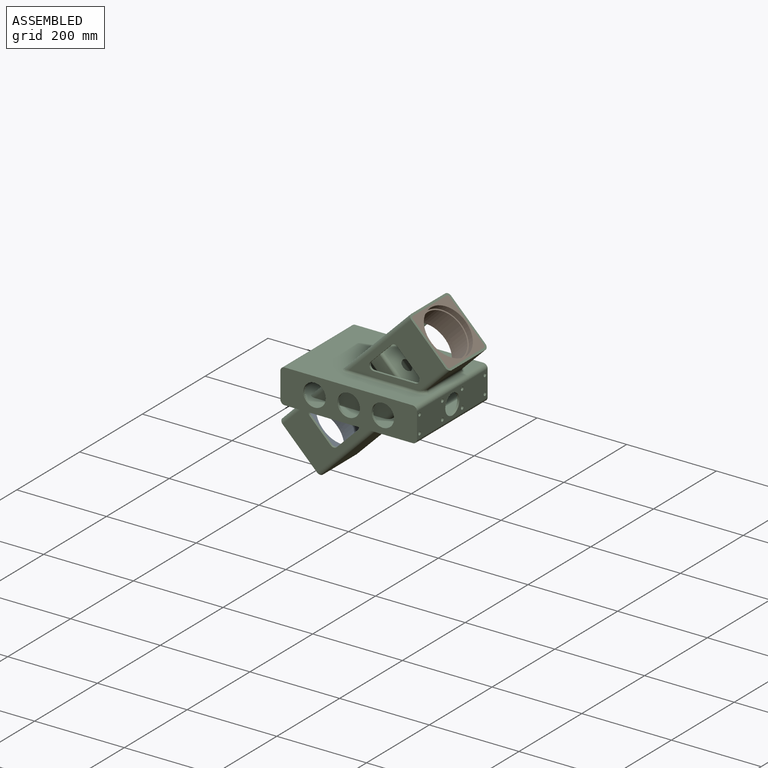
[diagram: assembled view]
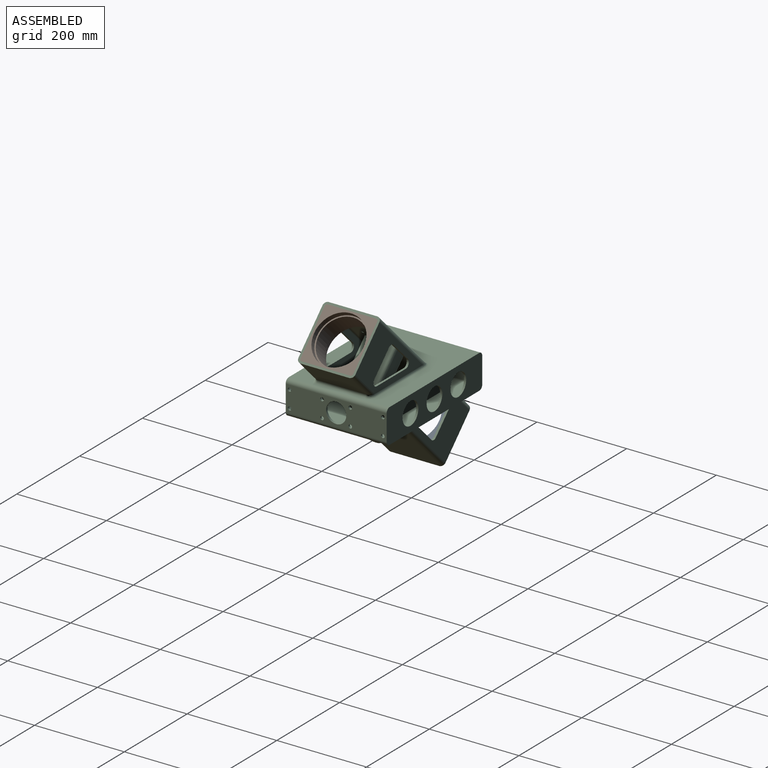
[diagram: assembled view, second angle]
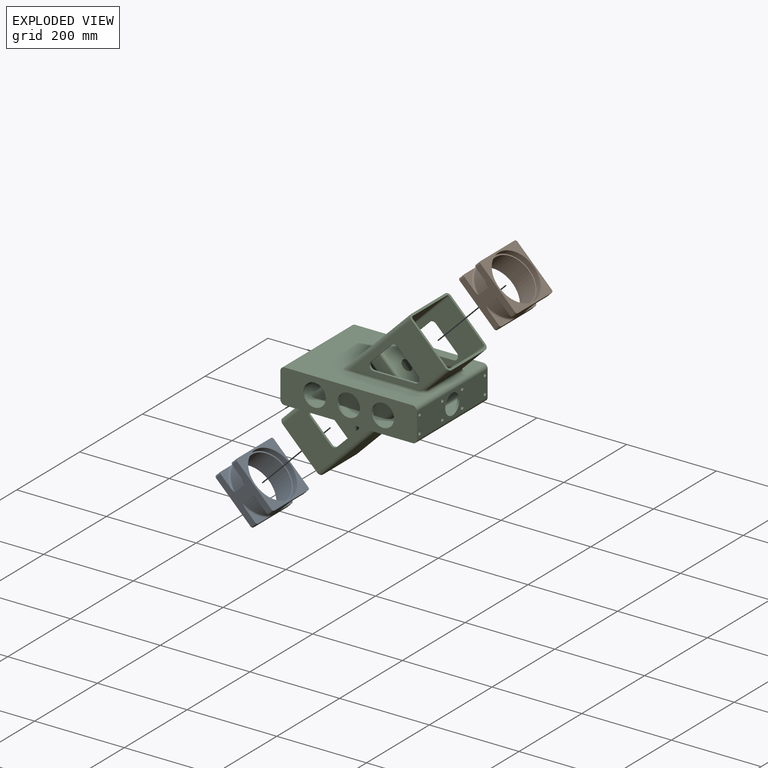
[diagram: exploded view]
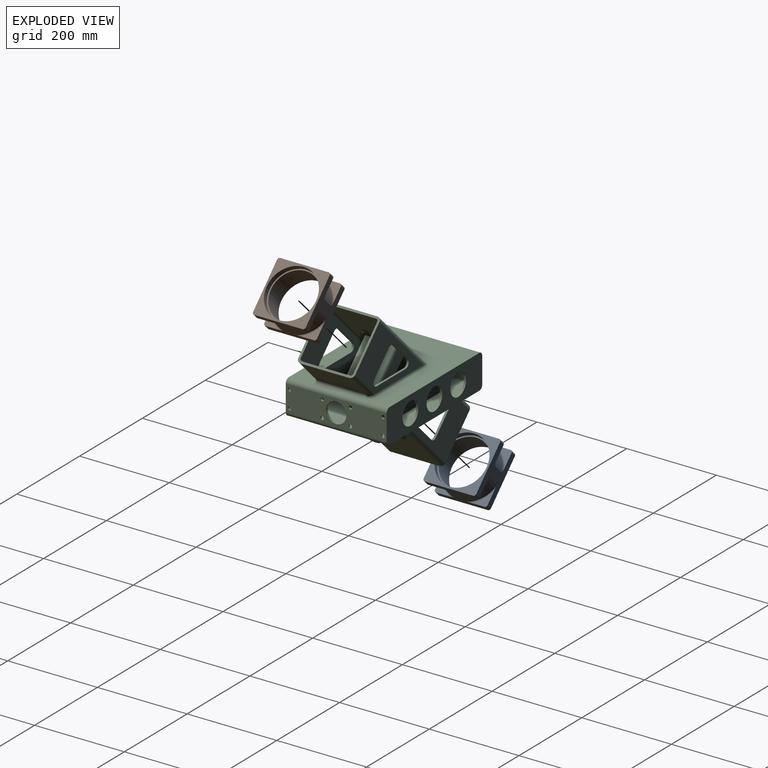
[diagram: exploded view, second angle]
ASSEMBLY  parts=3 mates=2
PART A: 39 faces, bbox 138.7x138.7x66 mm
  f0: plane 117.48x117.48mm, normal (0,0,-1), area 4277.6mm2, adj f2,f7,f8,f9,f10,f11,f12,f13
  f1: plane 117.48x117.48mm, normal (0,0,1), area 4277.6mm2, adj f6,f7,f9,f11,f13,f15,f16,f17
  f2: cylinder r=55mm len=110mm, axis (0,0,1), area 4492.5mm2, adj f0,f3
  f3: plane 110x110mm, normal (0,0,-1), area 959.4mm2, adj f2,f4
  f4: cylinder r=52.15mm len=104.3mm, axis (0,0,-1), area 13106.7mm2, adj f3,f5
  f5: plane 110x110mm, normal (0,0,1), area 959.4mm2, adj f4,f6
  f6: cylinder r=55mm len=110mm, axis (0,0,1), area 4492.5mm2, adj f1,f5
  f7: plane 107.95x66mm, normal (0,-1,0), area 4155.3mm2, adj f0,f1,f8,f14,f15,f18,f19,f20
  f8: cylinder r=4.76mm len=15mm, axis (0,0,1), area 112.2mm2, adj f0,f7,f9,f38
  f9: plane 107.95x66mm, normal (-1,0,0), area 4155.3mm2, adj f0,f1,f8,f10,f15,f16,f29,f30
  f10: cylinder r=4.76mm len=15mm, axis (0,0,1), area 112.2mm2, adj f0,f9,f11,f33
  f11: plane 107.95x66mm, normal (0,1,0), area 4155.3mm2, adj f0,f1,f10,f12,f16,f17,f24,f25
  f12: cylinder r=4.76mm len=15mm, axis (0,0,1), area 112.2mm2, adj f0,f11,f13,f28
  f13: plane 107.95x66mm, normal (1,0,0), area 4155.3mm2, adj f0,f1,f12,f14,f17,f18,f19,f20
  f14: cylinder r=4.76mm len=15mm, axis (0,0,1), area 112.2mm2, adj f0,f7,f13,f23
  f15: cylinder r=4.76mm len=15mm, axis (0,0,1), area 112.2mm2, adj f1,f7,f9,f34
  f16: cylinder r=4.76mm len=15mm, axis (0,0,1), area 112.2mm2, adj f1,f9,f11,f29
  f17: cylinder r=4.76mm len=15mm, axis (0,0,1), area 112.2mm2, adj f1,f11,f13,f24
  f18: cylinder r=4.76mm len=15mm, axis (0,0,1), area 112.2mm2, adj f1,f7,f13,f19
  f19: plane 35.48x35.48mm, normal (0,0,-1), area 449.3mm2, adj f7,f13,f18,f20
  f20: torus R=63.17mm, axis (0,0,-1), area 310.2mm2, adj f7,f13,f19,f21
  f21: cylinder r=60mm len=46.49mm, axis (0,0,-1), area 2063.3mm2, adj f7,f13,f20,f22
  f22: torus R=63.17mm, axis (0,0,1), area 310.2mm2, adj f7,f13,f21,f23
  f23: plane 35.48x35.48mm, normal (0,0,1), area 449.3mm2, adj f7,f13,f14,f22
  f24: plane 35.48x35.48mm, normal (0,0,-1), area 449.3mm2, adj f11,f13,f17,f25
  f25: torus R=63.17mm, axis (0,0,-1), area 310.2mm2, adj f11,f13,f24,f26
  f26: cylinder r=60mm len=46.49mm, axis (0,0,-1), area 2063.3mm2, adj f11,f13,f25,f27
  f27: torus R=63.17mm, axis (0,0,1), area 310.2mm2, adj f11,f13,f26,f28
  f28: plane 35.48x35.48mm, normal (0,0,1), area 449.3mm2, adj f11,f12,f13,f27
  f29: plane 35.48x35.48mm, normal (0,0,-1), area 449.3mm2, adj f9,f11,f16,f30
  f30: torus R=63.17mm, axis (0,0,-1), area 310.2mm2, adj f9,f11,f29,f31
  f31: cylinder r=60mm len=46.49mm, axis (0,0,-1), area 2063.3mm2, adj f9,f11,f30,f32
  f32: torus R=63.17mm, axis (0,0,1), area 310.2mm2, adj f9,f11,f31,f33
  f33: plane 35.48x35.48mm, normal (0,0,1), area 449.3mm2, adj f9,f10,f11,f32
  f34: plane 35.48x35.48mm, normal (0,0,-1), area 449.3mm2, adj f7,f9,f15,f35
  f35: torus R=63.17mm, axis (0,0,-1), area 310.2mm2, adj f7,f9,f34,f36
  f36: cylinder r=60mm len=46.49mm, axis (0,0,-1), area 2063.3mm2, adj f7,f9,f35,f37
  f37: torus R=63.17mm, axis (0,0,1), area 310.2mm2, adj f7,f9,f36,f38
  f38: plane 35.48x35.48mm, normal (0,0,1), area 449.3mm2, adj f7,f8,f9,f37
PART B: same geometry as A
PART C: 161 faces, bbox 376.9x225x376.9 mm
  f0: plane 295.28x66.68mm, normal (0,-1,0), area 12293.6mm2, adj f21,f22,f23,f24,f25,f26,f27,f28
  f1: plane 295.28x66.68mm, normal (0,1,0), area 12293.6mm2, adj f21,f22,f23,f24,f25,f26,f27,f28
  f2: cylinder r=4mm len=8mm, axis (-1,0,0), area 119.7mm2, adj f25,f55
  f3: cylinder r=4mm len=8mm, axis (-1,0,0), area 119.7mm2, adj f25,f55
  f4: cylinder r=4mm len=8mm, axis (-1,0,0), area 119.7mm2, adj f25,f55
  f5: cylinder r=4mm len=8mm, axis (-1,0,0), area 119.7mm2, adj f25,f55
  f6: cylinder r=4mm len=8mm, axis (1,0,0), area 119.7mm2, adj f22,f52
  f7: cylinder r=4mm len=8mm, axis (1,0,0), area 119.7mm2, adj f22,f52
  f8: cylinder r=4mm len=8mm, axis (1,0,0), area 119.7mm2, adj f22,f52
  f9: cylinder r=4mm len=8mm, axis (1,0,0), area 119.7mm2, adj f22,f52
  f10: plane 107.95x66.68mm, normal (0.71,0,-0.71), area 7969.8mm2, adj f18,f19,f27,f28,f116,f117,f118,f119
  f11: plane 287.09x287.09mm, normal (0.71,0,-0.71), area 40815.7mm2, adj f40,f43,f63,f64,f108,f109,f110,f111
  f12: plane 287.09x287.09mm, normal (-0.71,0,0.71), area 40959.1mm2, adj f41,f42,f63,f64,f108,f109,f110,f111
  f13: plane 148.86x148.86mm, normal (-0.71,0,0.71), area 20372.8mm2, adj f60,f61,f64,f69,f116,f117,f118,f119
  f14: cylinder r=9.53mm len=80.15mm, axis (0.71,0,0.71), area 1410.8mm2, adj f15,f20,f27,f28
  f15: plane 107.95x66.68mm, normal (-0.71,0,0.71), area 10178.9mm2, adj f14,f16,f27,f28
  f16: cylinder r=9.53mm len=80.15mm, axis (0.71,0,0.71), area 1410.8mm2, adj f15,f17,f27,f28
  f17: plane 219.34x66.68mm, normal (0,1,0), area 10178.9mm2, adj f16,f18,f27,f28
  f18: cylinder r=9.53mm len=80.15mm, axis (0.71,0,0.71), area 1410.8mm2, adj f10,f17,f27,f28
  f19: cylinder r=9.53mm len=80.15mm, axis (0.71,0,0.71), area 1410.8mm2, adj f10,f20,f27,f28
  f20: plane 219.34x66.68mm, normal (0,-1,0), area 10178.9mm2, adj f14,f19,f27,f28
  f21: cylinder r=4.76mm len=215.48mm, axis (0,1,0), area 1612mm2, adj f0,f1,f22,f28
  f22: plane 221.5x57.15mm, normal (-1,0,0), area 10417.1mm2, adj f0,f1,f6,f7,f8,f9,f21,f23
  f23: cylinder r=4.76mm len=215.48mm, axis (0,1,0), area 1612mm2, adj f0,f1,f22,f27
  f24: cylinder r=4.76mm len=215.48mm, axis (0,1,0), area 1612mm2, adj f0,f1,f25,f27
  f25: plane 221.5x57.15mm, normal (1,0,0), area 10417.1mm2, adj f0,f1,f2,f3,f4,f5,f24,f26
  f26: cylinder r=4.76mm len=215.48mm, axis (0,1,0), area 1612mm2, adj f0,f1,f25,f28
  f27: plane 285.75x215.48mm, normal (0,0,-1), area 38872.3mm2, adj f0,f1,f10,f14,f15,f16,f17,f18
  f28: plane 285.75x215.48mm, normal (0,0,1), area 38872.3mm2, adj f0,f1,f10,f14,f15,f16,f17,f18
  f29: cylinder r=25mm len=50mm, axis (0,-1,0), area 748.1mm2, adj f1,f56
  f30: cylinder r=25mm len=50mm, axis (0,-1,0), area 748.1mm2, adj f1,f56
  f31: cylinder r=25mm len=50mm, axis (0,-1,0), area 748.1mm2, adj f1,f56
  f32: plane 363.42x363.42mm, normal (0,1,0), area 34492.3mm2, adj f40,f41,f63,f64,f87,f88,f89,f90
  f33: plane 363.42x363.42mm, normal (0,-1,0), area 34492.3mm2, adj f42,f43,f63,f64,f81,f82,f83,f84
  f34: plane 214.92x138.59mm, normal (0,-1,0), area 10666mm2, adj f59,f60,f64,f72,f87,f88,f89,f90
  f35: plane 214.92x138.59mm, normal (0,1,0), area 10666mm2, adj f58,f61,f64,f65,f81,f82,f83,f84
  f36: plane 148.9x148.9mm, normal (0.71,0,-0.71), area 21180.1mm2, adj f44,f45,f63,f76,f152
  f37: plane 107.95x52.03mm, normal (-0.71,0,0.71), area 7942.8mm2, adj f46,f47,f63,f77
  f38: plane 214.96x138.63mm, normal (0,-1,0), area 10666.6mm2, adj f45,f46,f63,f80,f99,f100,f101,f102
  f39: plane 214.96x138.63mm, normal (0,1,0), area 10666.6mm2, adj f44,f47,f63,f73,f93,f94,f95,f96
  f40: cylinder r=4.76mm len=290.45mm, axis (0.71,0,0.71), area 3037.3mm2, adj f11,f32,f63,f64
  f41: cylinder r=4.76mm len=290.45mm, axis (0.71,0,0.71), area 3037.3mm2, adj f12,f32,f63,f64
  f42: cylinder r=4.76mm len=290.45mm, axis (0.71,0,0.71), area 3037.3mm2, adj f12,f33,f63,f64
  f43: cylinder r=4.76mm len=290.45mm, axis (0.71,0,0.71), area 3037.3mm2, adj f11,f33,f63,f64
  f44: cylinder r=9.53mm len=155.64mm, axis (0.71,0,0.71), area 3071.7mm2, adj f36,f39,f63,f74
  f45: cylinder r=9.53mm len=155.64mm, axis (0.71,0,0.71), area 3071.7mm2, adj f36,f38,f63,f78
  f46: cylinder r=9.53mm len=69.03mm, axis (0.71,0,0.71), area 1179.8mm2, adj f37,f38,f63,f79
  f47: cylinder r=9.53mm len=69.03mm, axis (0.71,0,0.71), area 1179.8mm2, adj f37,f39,f63,f75
  f48: plane 285.75x225mm, normal (0,0,-1), area 38006.5mm2, adj f50,f51,f56,f57,f73,f74,f75,f76
  f49: plane 285.75x225mm, normal (0,0,1), area 38006.5mm2, adj f53,f54,f56,f57,f65,f66,f67,f68
  f50: cylinder r=9.53mm len=225mm, axis (0,1,0), area 3366.4mm2, adj f48,f55,f56,f57
  f51: cylinder r=9.53mm len=225mm, axis (0,1,0), area 3366.4mm2, adj f48,f52,f56,f57
  f52: plane 225x57.15mm, normal (1,0,0), area 10866.2mm2, adj f6,f7,f8,f9,f51,f53,f56,f57
  f53: cylinder r=9.53mm len=225mm, axis (0,1,0), area 3366.4mm2, adj f49,f52,f56,f57
  f54: cylinder r=9.53mm len=225mm, axis (0,1,0), area 3366.4mm2, adj f49,f55,f56,f57
  f55: plane 225x57.15mm, normal (-1,0,0), area 10866.2mm2, adj f2,f3,f4,f5,f50,f54,f56,f57
  f56: plane 304.8x76.2mm, normal (0,-1,0), area 17257.4mm2, adj f29,f30,f31,f48,f49,f50,f51,f52
  f57: plane 304.8x76.2mm, normal (0,1,0), area 17257.4mm2, adj f48,f49,f50,f51,f52,f53,f54,f55
  f58: cylinder r=9.53mm len=68.99mm, axis (0.71,0,0.71), area 1178.9mm2, adj f35,f62,f64,f66
  f59: cylinder r=9.53mm len=68.99mm, axis (0.71,0,0.71), area 1178.9mm2, adj f34,f62,f64,f70
  f60: cylinder r=9.53mm len=155.59mm, axis (0.71,0,0.71), area 3070.7mm2, adj f13,f34,f64,f71
  f61: cylinder r=9.53mm len=155.59mm, axis (0.71,0,0.71), area 3070.7mm2, adj f13,f35,f64,f67
  f62: plane 107.95x51.98mm, normal (0.71,0,-0.71), area 7936.1mm2, adj f58,f59,f64,f68
  f63: plane 127x89.8mm, normal (-0.71,0,-0.71), area 2270.2mm2, adj f11,f12,f32,f33,f36,f37,f38,f39
  f64: plane 127x89.8mm, normal (0.71,0,0.71), area 2270.2mm2, adj f11,f12,f13,f32,f33,f34,f35,f40
  f65: cylinder r=5mm len=152.66mm, axis (-1,0,0), area 1199mm2, adj f35,f49,f66,f67
  f66: bspline ~20.54x14.53mm, area 221.8mm2, adj f49,f58,f65,f68
  f67: bspline ~24.11x15.16mm, area 135.5mm2, adj f49,f61,f65,f69
  f68: cylinder r=5mm len=107.95mm, axis (0,1,0), area 1271.8mm2, adj f49,f62,f66,f70
  f69: cylinder r=5mm len=107.95mm, axis (0,-1,0), area 423.9mm2, adj f13,f49,f67,f71
  f70: bspline ~20.54x14.53mm, area 221.8mm2, adj f49,f59,f68,f72
  f71: bspline ~21.44x17.05mm, area 135.5mm2, adj f49,f60,f69,f72
  f72: cylinder r=5mm len=152.66mm, axis (1,0,0), area 1199mm2, adj f34,f49,f70,f71
  f73: cylinder r=5mm len=152.66mm, axis (1,0,0), area 1199mm2, adj f39,f48,f74,f75
  f74: bspline ~24.11x14.53mm, area 135.5mm2, adj f44,f48,f73,f76
  f75: bspline ~24.11x15.16mm, area 221.8mm2, adj f47,f48,f73,f77
  f76: cylinder r=5mm len=107.95mm, axis (0,-1,0), area 423.9mm2, adj f36,f48,f74,f78
  f77: cylinder r=5mm len=107.95mm, axis (0,1,0), area 1271.8mm2, adj f37,f48,f75,f79
  f78: bspline ~24.11x14.53mm, area 135.5mm2, adj f45,f48,f76,f80
  f79: bspline ~24.11x17.05mm, area 221.8mm2, adj f46,f48,f77,f80
  f80: cylinder r=5mm len=152.66mm, axis (-1,0,0), area 1199mm2, adj f38,f48,f78,f79
  f81: cylinder r=10mm len=14.14mm, axis (0,-1,0), area 74.8mm2, adj f33,f35,f82,f86
  f82: plane 46.1x46.1mm, normal (-0.71,0,-0.71), area 310.5mm2, adj f33,f35,f81,f83
  f83: cylinder r=10mm len=17.07mm, axis (0,-1,0), area 112.2mm2, adj f33,f35,f82,f84
  f84: plane 92.19x4.76mm, normal (0,0,1), area 439.1mm2, adj f33,f35,f83,f85
  f85: cylinder r=10mm len=17.07mm, axis (0,-1,0), area 112.2mm2, adj f33,f35,f84,f86
  f86: plane 46.1x46.1mm, normal (0.71,0,-0.71), area 310.5mm2, adj f33,f35,f81,f85
  f87: plane 46.1x46.1mm, normal (0.71,0,-0.71), area 310.5mm2, adj f32,f34,f88,f92
  f88: cylinder r=10mm len=17.07mm, axis (0,-1,0), area 112.2mm2, adj f32,f34,f87,f89
  f89: plane 92.19x4.76mm, normal (0,0,1), area 439.1mm2, adj f32,f34,f88,f90
  f90: cylinder r=10mm len=17.07mm, axis (0,-1,0), area 112.2mm2, adj f32,f34,f89,f91
  f91: plane 46.1x46.1mm, normal (-0.71,0,-0.71), area 310.5mm2, adj f32,f34,f90,f92
  f92: cylinder r=10mm len=14.14mm, axis (0,-1,0), area 74.8mm2, adj f32,f34,f87,f91
  f93: cylinder r=10mm len=17.07mm, axis (0,-1,0), area 112.2mm2, adj f33,f39,f94,f98
  f94: plane 92.28x4.76mm, normal (0,0,-1), area 439.5mm2, adj f33,f39,f93,f95
  f95: cylinder r=10mm len=17.07mm, axis (0,-1,0), area 112.2mm2, adj f33,f39,f94,f96
  f96: plane 46.14x46.14mm, normal (-0.71,0,0.71), area 310.8mm2, adj f33,f39,f95,f97
  f97: cylinder r=10mm len=14.14mm, axis (0,-1,0), area 74.8mm2, adj f33,f39,f96,f98
  f98: plane 46.14x46.14mm, normal (0.71,0,0.71), area 310.8mm2, adj f33,f39,f93,f97
  f99: plane 46.14x46.14mm, normal (0.71,0,0.71), area 310.8mm2, adj f32,f38,f100,f104
  f100: cylinder r=10mm len=14.14mm, axis (0,-1,0), area 74.8mm2, adj f32,f38,f99,f101
  f101: plane 46.14x46.14mm, normal (-0.71,0,0.71), area 310.8mm2, adj f32,f38,f100,f102
  f102: cylinder r=10mm len=17.07mm, axis (0,-1,0), area 112.2mm2, adj f32,f38,f101,f103
  f103: plane 92.28x4.76mm, normal (0,0,-1), area 439.5mm2, adj f32,f38,f102,f104
  f104: cylinder r=10mm len=17.07mm, axis (0,-1,0), area 112.2mm2, adj f32,f38,f99,f103
  f105: cylinder r=25mm len=50mm, axis (0,1,0), area 748.1mm2, adj f0,f57
  f106: cylinder r=25mm len=50mm, axis (0,1,0), area 748.1mm2, adj f0,f57
  f107: cylinder r=25mm len=50mm, axis (0,1,0), area 748.1mm2, adj f0,f57
  f108: cylinder r=6.35mm len=87.56mm, axis (-0.71,0,0.71), area 1171.8mm2, adj f11,f12,f109,f115
  f109: plane 101.03x101.03mm, normal (0,-1,0), area 2983.9mm2, adj f11,f12,f108,f110
  f110: cylinder r=6.35mm len=87.56mm, axis (-0.71,0,0.71), area 1171.8mm2, adj f11,f12,f109,f111
  f111: plane 83.07x83.07mm, normal (-0.71,0,-0.71), area 6953mm2, adj f11,f12,f110,f112,f159
  f112: cylinder r=6.35mm len=87.56mm, axis (-0.71,0,0.71), area 1171.8mm2, adj f11,f12,f111,f113
  f113: plane 101.03x101.03mm, normal (0,1,0), area 2983.9mm2, adj f11,f12,f112,f114
  f114: cylinder r=6.35mm len=87.56mm, axis (-0.71,0,0.71), area 1171.8mm2, adj f11,f12,f113,f115
  f115: plane 83.07x83.07mm, normal (0.71,0,0.71), area 6953mm2, adj f11,f12,f108,f114,f160
  f116: cylinder r=3.17mm len=92.05mm, axis (-0.71,0,0.71), area 633.4mm2, adj f10,f13,f117,f123
  f117: plane 89.8x89.8mm, normal (-0.71,0,-0.71), area 7557.8mm2, adj f10,f13,f116,f118,f160
  f118: cylinder r=3.17mm len=92.05mm, axis (-0.71,0,0.71), area 633.4mm2, adj f10,f13,f117,f119
  f119: plane 107.76x107.76mm, normal (0,1,0), area 3225.8mm2, adj f10,f13,f118,f120
  f120: cylinder r=3.17mm len=92.05mm, axis (-0.71,0,0.71), area 633.4mm2, adj f10,f13,f119,f121
  f121: plane 89.8x89.8mm, normal (0.71,0,0.71), area 7557.8mm2, adj f10,f13,f120,f122,f159
  f122: cylinder r=3.17mm len=92.05mm, axis (-0.71,0,0.71), area 633.4mm2, adj f10,f13,f121,f123
  f123: plane 107.76x107.76mm, normal (0,-1,0), area 3225.8mm2, adj f10,f13,f116,f122
  f124: cylinder r=22.5mm len=45mm, axis (1,0,0), area 673.3mm2, adj f22,f52
  f125: cylinder r=4mm len=8mm, axis (1,0,0), area 119.7mm2, adj f22,f52
  f126: cylinder r=4mm len=8mm, axis (1,0,0), area 119.7mm2, adj f22,f52
  f127: cylinder r=4mm len=8mm, axis (1,0,0), area 119.7mm2, adj f22,f52
  f128: cylinder r=4mm len=8mm, axis (1,0,0), area 119.7mm2, adj f22,f52
  f129: cylinder r=22.5mm len=45mm, axis (-1,0,0), area 673.3mm2, adj f25,f55
  f130: cylinder r=4mm len=8mm, axis (-1,0,0), area 119.7mm2, adj f25,f55
  f131: cylinder r=4mm len=8mm, axis (-1,0,0), area 119.7mm2, adj f25,f55
  f132: cylinder r=4mm len=8mm, axis (-1,0,0), area 119.7mm2, adj f25,f55
  f133: cylinder r=4mm len=8mm, axis (-1,0,0), area 119.7mm2, adj f25,f55
  f134: plane 11.24x3.01mm, normal (1,0,0), area 23.8mm2, adj f0,f135
  f135: cylinder r=6.75mm len=33mm, axis (1,0,0), area 438.4mm2, adj f0,f22,f134
  f136: plane 11.24x3.01mm, normal (1,0,0), area 23.8mm2, adj f0,f137
  f137: cylinder r=6.75mm len=33mm, axis (1,0,0), area 438.4mm2, adj f0,f22,f136
  f138: cylinder r=6.75mm len=33mm, axis (1,0,0), area 438.4mm2, adj f1,f22,f139
  f139: plane 11.24x3.01mm, normal (1,0,0), area 23.8mm2, adj f1,f138
  f140: cylinder r=6.75mm len=33mm, axis (1,0,0), area 438.4mm2, adj f1,f22,f141
  f141: plane 11.24x3.01mm, normal (1,0,0), area 23.8mm2, adj f1,f140
  f142: plane 11.24x3.01mm, normal (-1,0,0), area 23.8mm2, adj f0,f143
  f143: cylinder r=6.75mm len=33mm, axis (-1,0,0), area 438.4mm2, adj f0,f25,f142
  f144: plane 11.24x3.01mm, normal (-1,0,0), area 23.8mm2, adj f0,f145
  f145: cylinder r=6.75mm len=33mm, axis (-1,0,0), area 438.4mm2, adj f0,f25,f144
  f146: plane 11.24x3.01mm, normal (-1,0,0), area 23.8mm2, adj f1,f147
  f147: cylinder r=6.75mm len=33mm, axis (-1,0,0), area 438.4mm2, adj f1,f25,f146
  f148: plane 11.24x3.01mm, normal (-1,0,0), area 23.8mm2, adj f1,f149
  f149: cylinder r=6.75mm len=33mm, axis (-1,0,0), area 438.4mm2, adj f1,f25,f148
  f150: cylinder r=15.88mm len=44.37mm, axis (-0.71,0,0.71), area 3092.1mm2, adj f151,f152
  f151: plane 31.75x22.45mm, normal (0.71,0,-0.71), area 708.4mm2, adj f150,f153
  f152: torus R=22.23mm, axis (0.71,0,-0.71), area 1139.5mm2, adj f36,f150
  f153: cylinder r=5.15mm len=33.7mm, axis (0.71,0,-0.71), area 1208.8mm2, adj f151,f154
  f154: cone r=0mm half-angle=59deg, axis (0.71,0,-0.71), area 97.2mm2, adj f153
  f155: cylinder r=3.38mm len=8.15mm, axis (-0.71,0,0.71), area 101.1mm2, adj f11,f13
  f156: cylinder r=3.38mm len=8.15mm, axis (-0.71,0,0.71), area 101.1mm2, adj f11,f13
  f157: cylinder r=3.38mm len=8.15mm, axis (-0.71,0,0.71), area 101.1mm2, adj f11,f13
  f158: cylinder r=3.38mm len=8.15mm, axis (-0.71,0,0.71), area 101.1mm2, adj f11,f13
  f159: cylinder r=12.7mm len=25.4mm, axis (0.71,0,0.71), area 253.4mm2, adj f111,f121
  f160: cylinder r=12.7mm len=25.4mm, axis (0.71,0,0.71), area 253.4mm2, adj f115,f117
PLACE A rot(axis=(0,1,0),45deg) t=(-45.78,-112.5,-48.73)mm
PLACE B rot(axis=(0,1,0),45deg) t=(194.63,-112.5,191.69)mm
PLACE C at identity
MATE fastened B.f10 <-> C.f16  axis (0.71,0,0.71) through (203.14,-58.53,276.53)mm
MATE fastened A.f2 <-> C.f159  axis (-0.71,0,-0.71) through (-45.78,-112.5,-48.73)mm
